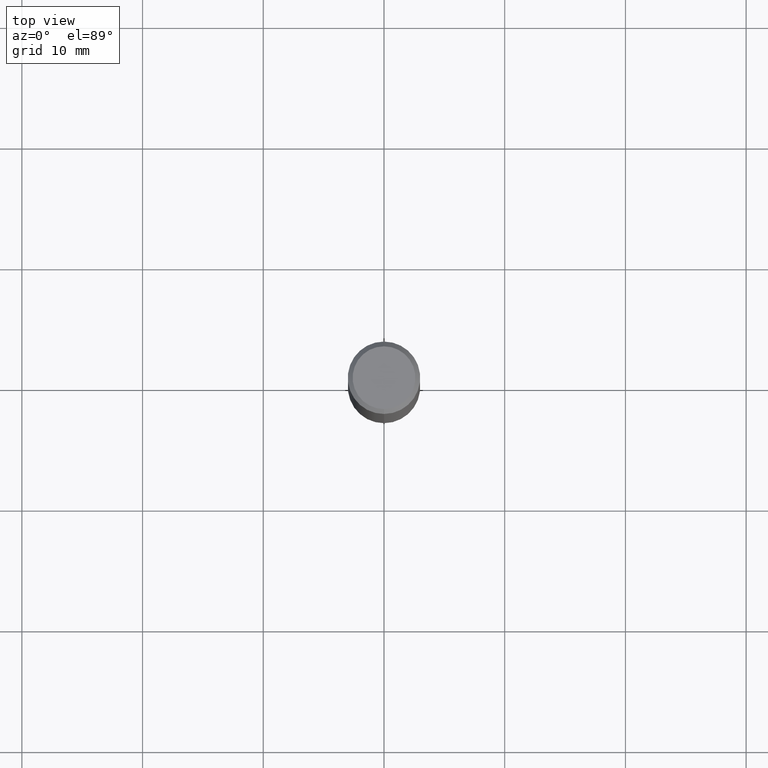
[diagram: clean part render]
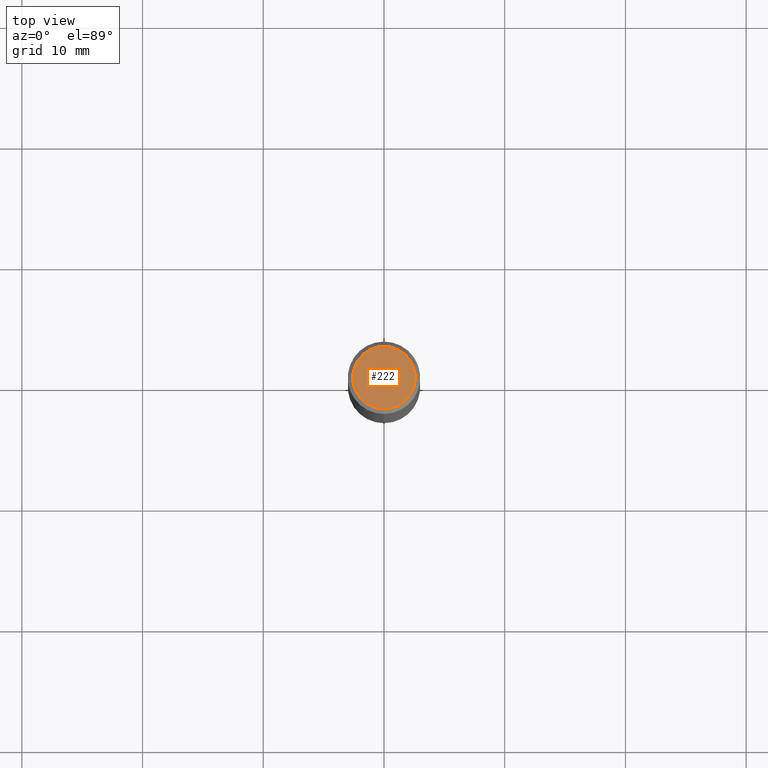
[diagram: same view with one face highlighted and labeled with its STEP entity id]
A machine part, top view. The second image highlights one B-rep face of the part: STEP entity #222.
In plain terms, the highlighted planar face has unit normal (-0, 0, 1).
Its self-contained STEP definition (entity closure, byte-faithful):
#130=VERTEX_POINT('',#286);
#152=EDGE_CURVE('',#130,#172,#311,.T.);
#162=EDGE_CURVE('',#172,#130,#323,.T.);
#172=VERTEX_POINT('',#334);
#222=ADVANCED_FACE('',(#389),#390,.T.);
#286=CARTESIAN_POINT('',(3.18397651993818E-016,-2.6,0.0));
#311=CIRCLE('',#486,2.6);
#323=CIRCLE('',#500,2.6);
#334=CARTESIAN_POINT('',(0.0,2.6,0.0));
#389=FACE_OUTER_BOUND('',#586,.T.);
#390=PLANE('',#587);
#486=AXIS2_PLACEMENT_3D('',#679,#680,#681);
#500=AXIS2_PLACEMENT_3D('',#699,#700,#701);
#586=EDGE_LOOP('',(#783,#784));
#587=AXIS2_PLACEMENT_3D('',#785,#786,#787);
#679=CARTESIAN_POINT('',(0.0,0.0,0.0));
#680=DIRECTION('',(0.0,0.0,-1.0));
#681=DIRECTION('',(0.0,1.0,0.0));
#699=CARTESIAN_POINT('',(0.0,0.0,0.0));
#700=DIRECTION('',(0.0,0.0,-1.0));
#701=DIRECTION('',(0.0,1.0,0.0));
#783=ORIENTED_EDGE('',*,*,#162,.F.);
#784=ORIENTED_EDGE('',*,*,#152,.F.);
#785=CARTESIAN_POINT('',(0.0,1.3,0.0));
#786=DIRECTION('',(-0.0,0.0,1.0));
#787=DIRECTION('',(0.0,-1.0,0.0));